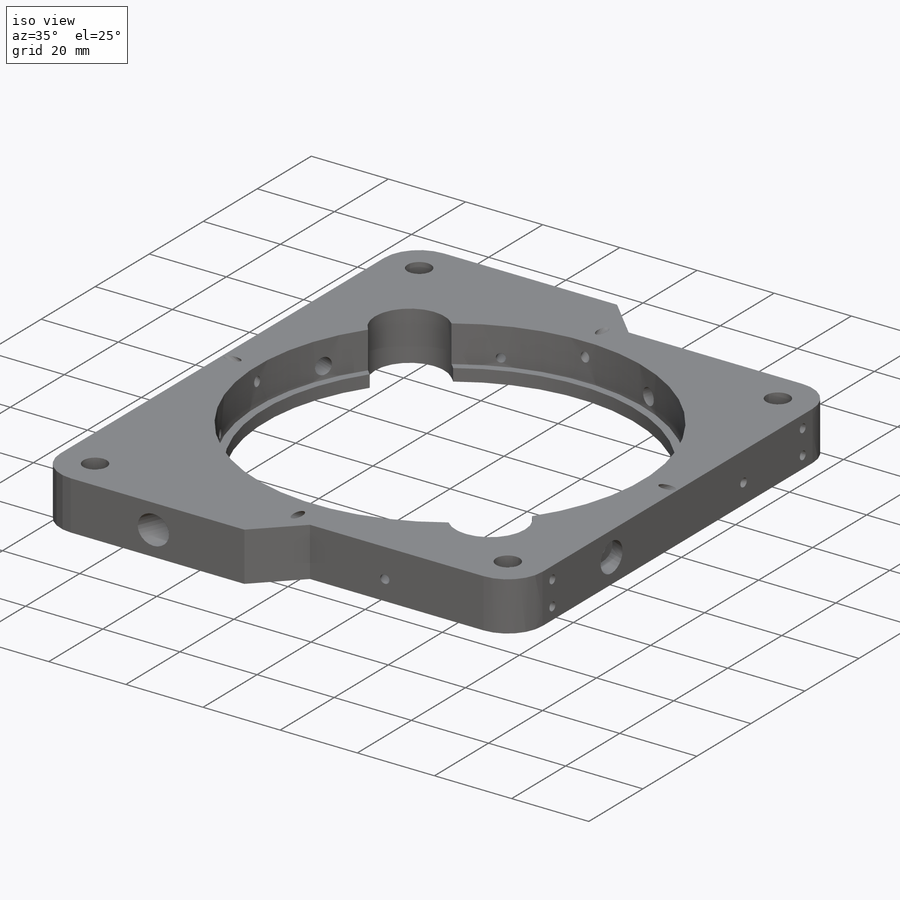
[diagram: iso view]
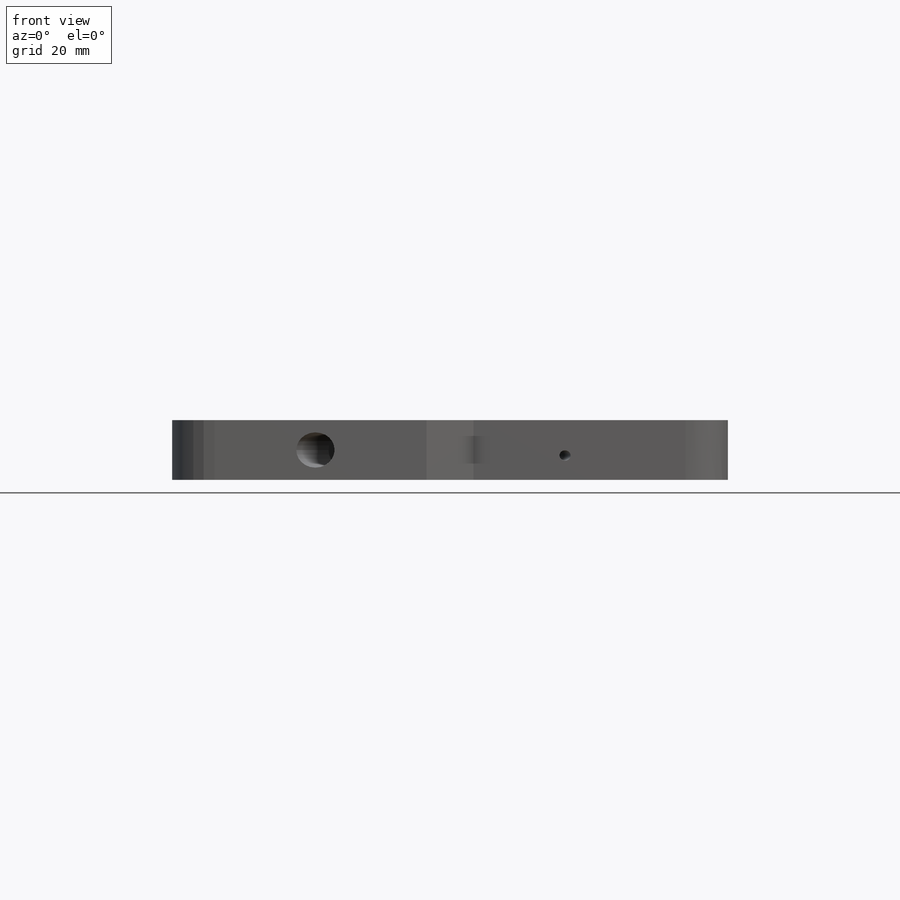
[diagram: front view]
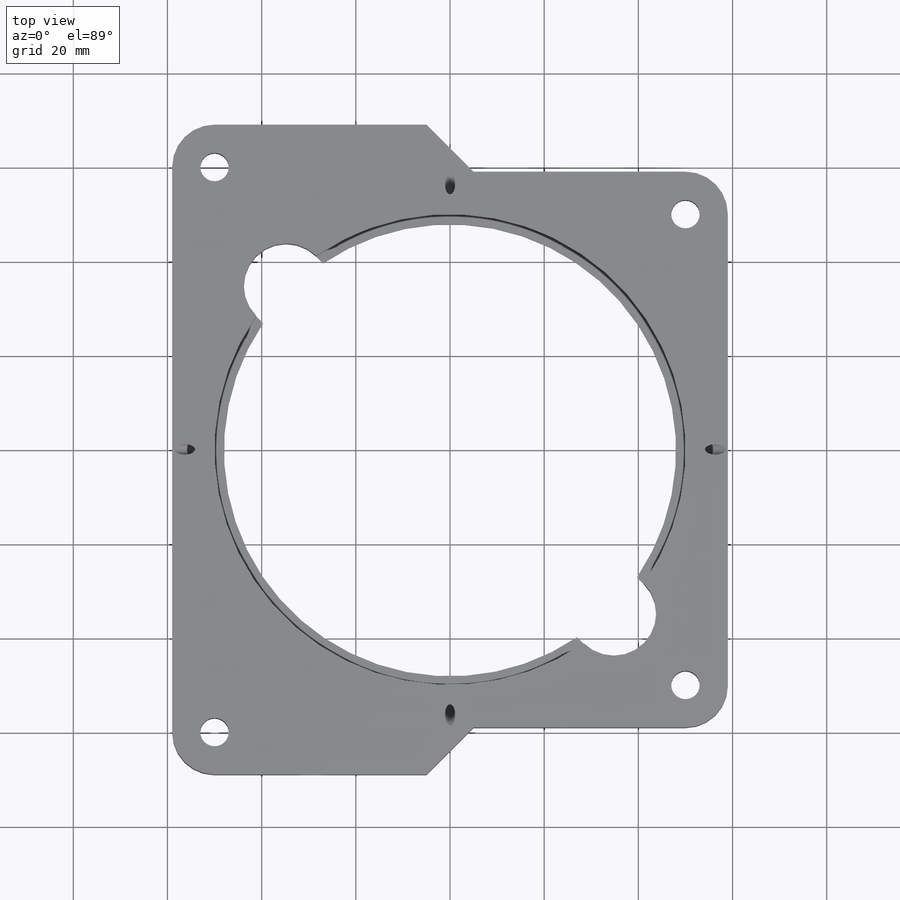
[diagram: top view]
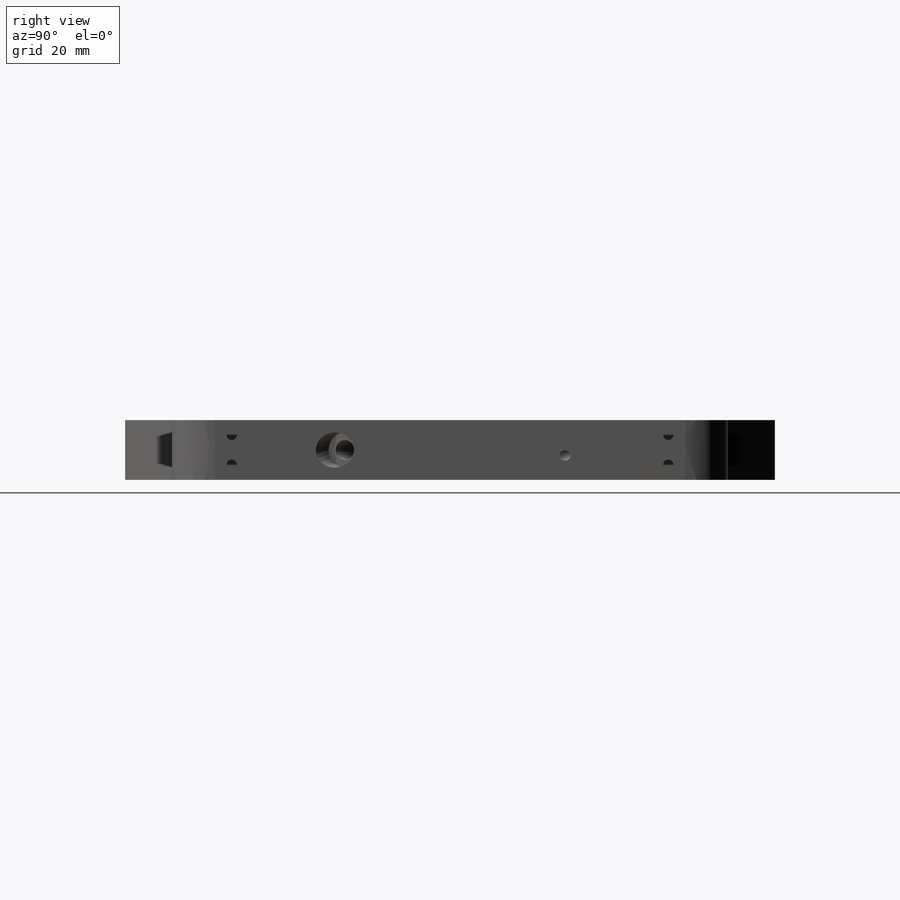
[diagram: right view]
SOLIDWORKS PART (.sldprt)
format: sldprt  version: not decoded by parser v0  size: 444,928 bytes
history: native  units: mm
features: sketch x9, cut_extrude x7, plane x4, pattern_circular x3, material x1, extrude x1, cut_revolve x1 (+16 scaffold rows collapsed)
feature tree (42):
  scaffold x16  (default folders/planes/origin — collapsed)
  material  "Material <not specified>"
  sketch  "Sketch1"  dims[c1.D1=6.05mm c1.D4=9.0mm c1.D7=9.0mm c1.D9=9.0mm c1.D2=100.0mm c1.D3=9.0mm c1.D5=60.0mm c1.D6=60.0mm c2.D4=9.0mm c2.D8=9.0mm]
  extrude  "Boss-Extrude1"  Depth=12.7mm
  sketch  "Sketch2"  dims[D1=~3.197931mm D2=3.175mm D3=0.625mm D4=~0.936163mm]
  cut_extrude  "Cut-Extrude1"  Depth=15mm
  sketch  "Sketch4"  dims[D1=2.0mm D2=50.0mm D3=9.525mm D4=2.0mm]
  cut_revolve  "Cut-Revolve1"  Angle=360deg
  plane  "Plane1"
  sketch  "Sketch5"  dims[D2=4.2mm D1=4.7625mm]
  cut_extrude  "Cut-Extrude2"  [1 undecoded]
  plane  "Plane2"
  sketch  "Sketch6"  dims[D1=2.19mm D2=2.0mm]
  cut_extrude  "Cut-Extrude3"  [1 undecoded]
  plane  "Plane3"
  plane  "Plane4"
  sketch  "Sketch7"  dims[D1=2.19mm D2=3.175mm]
  cut_extrude  "Cut-Extrude4"  [1 undecoded]
  pattern_circular  "CirPattern1"  Count=4 Angle=360deg
  sketch  "Sketch8"  dims[D2=9.0mm D1=18.0mm D3=~49.183331mm]
  cut_extrude  "Cut-Extrude5"  [1 undecoded]
  pattern_circular  "CirPattern2"  Count=2 Angle=360deg
  sketch  "Sketch9"  dims[D1=7.5mm]
  cut_extrude  "Cut-Extrude6"  Depth=5mm
  pattern_circular  "CirPattern6"  Count=4 Angle=360deg
  sketch  "Sketch10"  dims[D1=0.625mm]
  cut_extrude  "Cut-Extrude7"  Depth=15mm
decode coverage: 17 of 21 modeling features carry decoded parameters
note: ~ marks probable driven/reference dimensions
note: 4 parameter values undecoded
summary: no parameter record found for 4 features
note: suppression state not decoded; provenance and decode notes live in map.json
